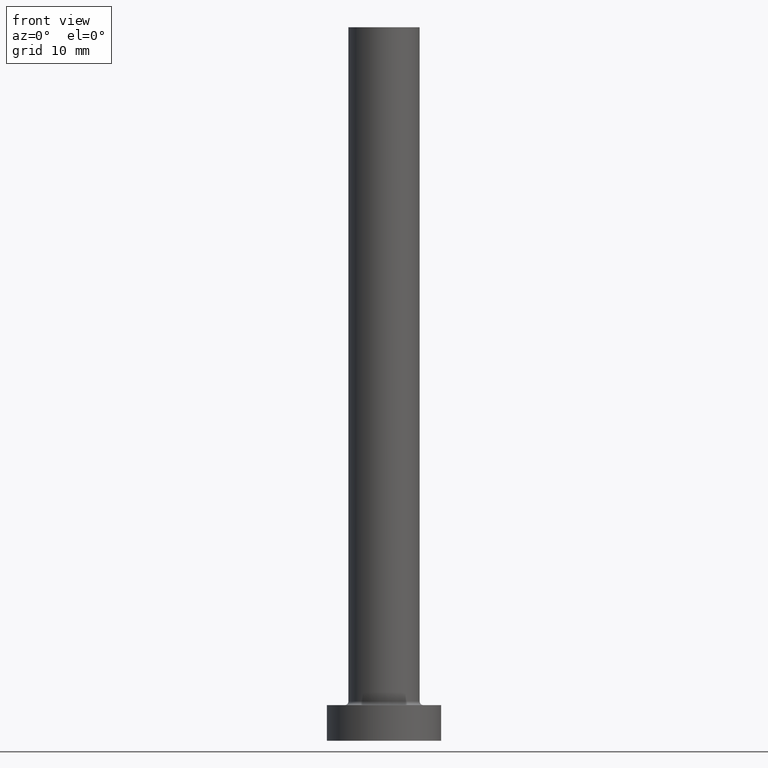
[diagram: clean part render]
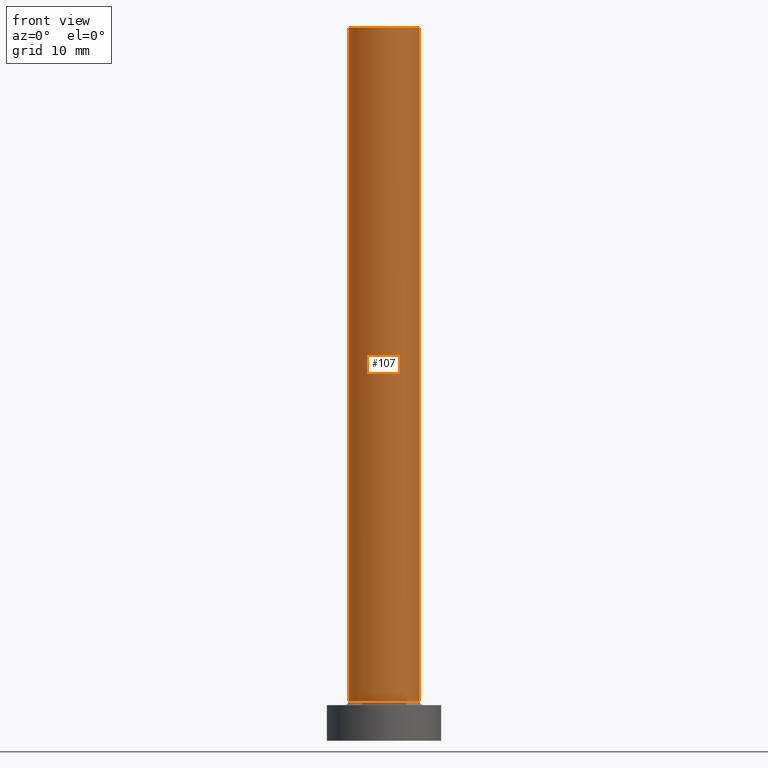
[diagram: same view with one face highlighted and labeled with its STEP entity id]
A machine part, front view. The second image highlights one B-rep face of the part: STEP entity #107.
In plain terms, the highlighted cylindrical surface (edge-blend (fillet) strip) has radius 5 mm, axis along (-0, -0, -1).
Its self-contained STEP definition (entity closure, byte-faithful):
#7 = DIRECTION ( 'NONE',  ( 1.000000000000000000, 0.000000000000000000, 0.000000000000000000 ) ) ;
#11 = AXIS2_PLACEMENT_3D ( 'NONE', #121, #84, #48 ) ;
#24 = ORIENTED_EDGE ( 'NONE', *, *, #442, .F. ) ;
#48 = DIRECTION ( 'NONE',  ( 1.000000000000000000, 0.000000000000000000, 0.000000000000000000 ) ) ;
#51 = FACE_OUTER_BOUND ( 'NONE', #447, .T. ) ;
#69 = CARTESIAN_POINT ( 'NONE',  ( -5.000000000000000000, 0.000000000000000000, 100.0000000000000000 ) ) ;
#76 = CARTESIAN_POINT ( 'NONE',  ( 5.000000000000000000, 6.123233995736766282E-16, 5.500000000000005329 ) ) ;
#78 = VERTEX_POINT ( 'NONE', #375 ) ;
#84 = DIRECTION ( 'NONE',  ( 0.000000000000000000, 0.000000000000000000, 1.000000000000000000 ) ) ;
#85 = EDGE_CURVE ( 'NONE', #78, #287, #309, .T. ) ;
#89 = VECTOR ( 'NONE', #205, 1000.000000000000000 ) ;
#93 = EDGE_CURVE ( 'NONE', #202, #287, #208, .T. ) ;
#107 = ADVANCED_FACE ( 'NONE', ( #51 ), #123, .T. ) ;
#108 = LINE ( 'NONE', #69, #89 ) ;
#110 = AXIS2_PLACEMENT_3D ( 'NONE', #269, #193, #340 ) ;
#121 = CARTESIAN_POINT ( 'NONE',  ( 0.000000000000000000, 0.000000000000000000, 5.500000000000005329 ) ) ;
#123 = CYLINDRICAL_SURFACE ( 'NONE', #110, 5.000000000000000000 ) ;
#143 = AXIS2_PLACEMENT_3D ( 'NONE', #210, #288, #7 ) ;
#193 = DIRECTION ( 'NONE',  ( -0.000000000000000000, -0.000000000000000000, -1.000000000000000000 ) ) ;
#202 = VERTEX_POINT ( 'NONE', #236 ) ;
#205 = DIRECTION ( 'NONE',  ( -0.000000000000000000, -0.000000000000000000, -1.000000000000000000 ) ) ;
#208 = CIRCLE ( 'NONE', #11, 5.000000000000000000 ) ;
#210 = CARTESIAN_POINT ( 'NONE',  ( 0.000000000000000000, 0.000000000000000000, 100.0000000000000000 ) ) ;
#213 = ORIENTED_EDGE ( 'NONE', *, *, #237, .T. ) ;
#221 = ORIENTED_EDGE ( 'NONE', *, *, #85, .F. ) ;
#226 = ORIENTED_EDGE ( 'NONE', *, *, #93, .T. ) ;
#236 = CARTESIAN_POINT ( 'NONE',  ( -5.000000000000000000, 0.000000000000000000, 5.500000000000005329 ) ) ;
#237 = EDGE_CURVE ( 'NONE', #274, #202, #108, .T. ) ;
#269 = CARTESIAN_POINT ( 'NONE',  ( 0.000000000000000000, 0.000000000000000000, 100.0000000000000000 ) ) ;
#274 = VERTEX_POINT ( 'NONE', #326 ) ;
#287 = VERTEX_POINT ( 'NONE', #76 ) ;
#288 = DIRECTION ( 'NONE',  ( 0.000000000000000000, 0.000000000000000000, 1.000000000000000000 ) ) ;
#299 = CARTESIAN_POINT ( 'NONE',  ( 5.000000000000000000, 6.123233995736766282E-16, 100.0000000000000000 ) ) ;
#309 = LINE ( 'NONE', #299, #410 ) ;
#326 = CARTESIAN_POINT ( 'NONE',  ( -5.000000000000000000, 0.000000000000000000, 100.0000000000000000 ) ) ;
#340 = DIRECTION ( 'NONE',  ( -1.000000000000000000, 0.000000000000000000, 0.000000000000000000 ) ) ;
#375 = CARTESIAN_POINT ( 'NONE',  ( 5.000000000000000000, 6.123233995736766282E-16, 100.0000000000000000 ) ) ;
#389 = CIRCLE ( 'NONE', #143, 5.000000000000000000 ) ;
#410 = VECTOR ( 'NONE', #437, 1000.000000000000000 ) ;
#437 = DIRECTION ( 'NONE',  ( -0.000000000000000000, -0.000000000000000000, -1.000000000000000000 ) ) ;
#442 = EDGE_CURVE ( 'NONE', #274, #78, #389, .T. ) ;
#447 = EDGE_LOOP ( 'NONE', ( #221, #24, #213, #226 ) ) ;